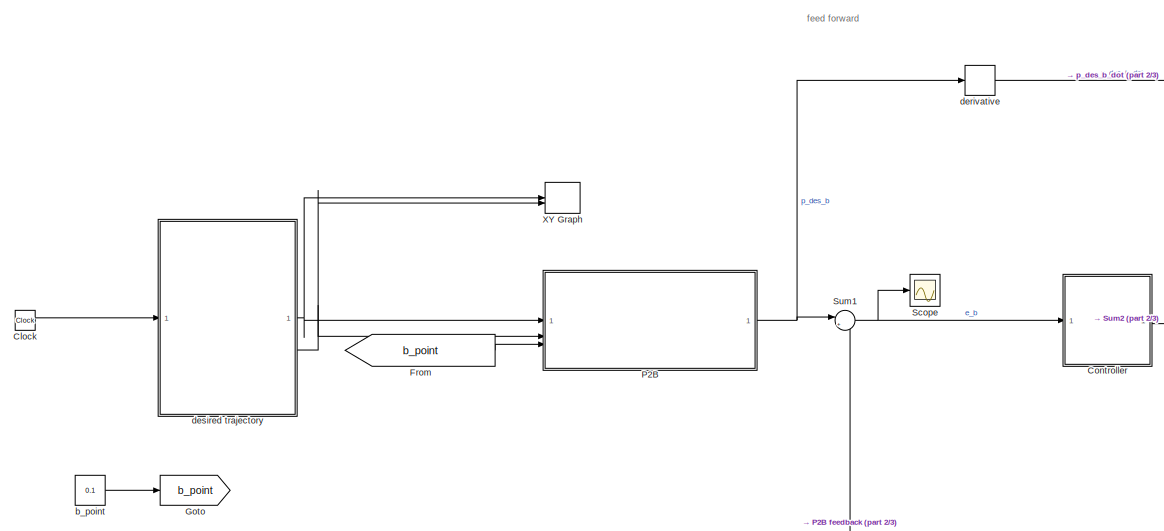
[diagram: root canvas - part 1/3, middle left region]
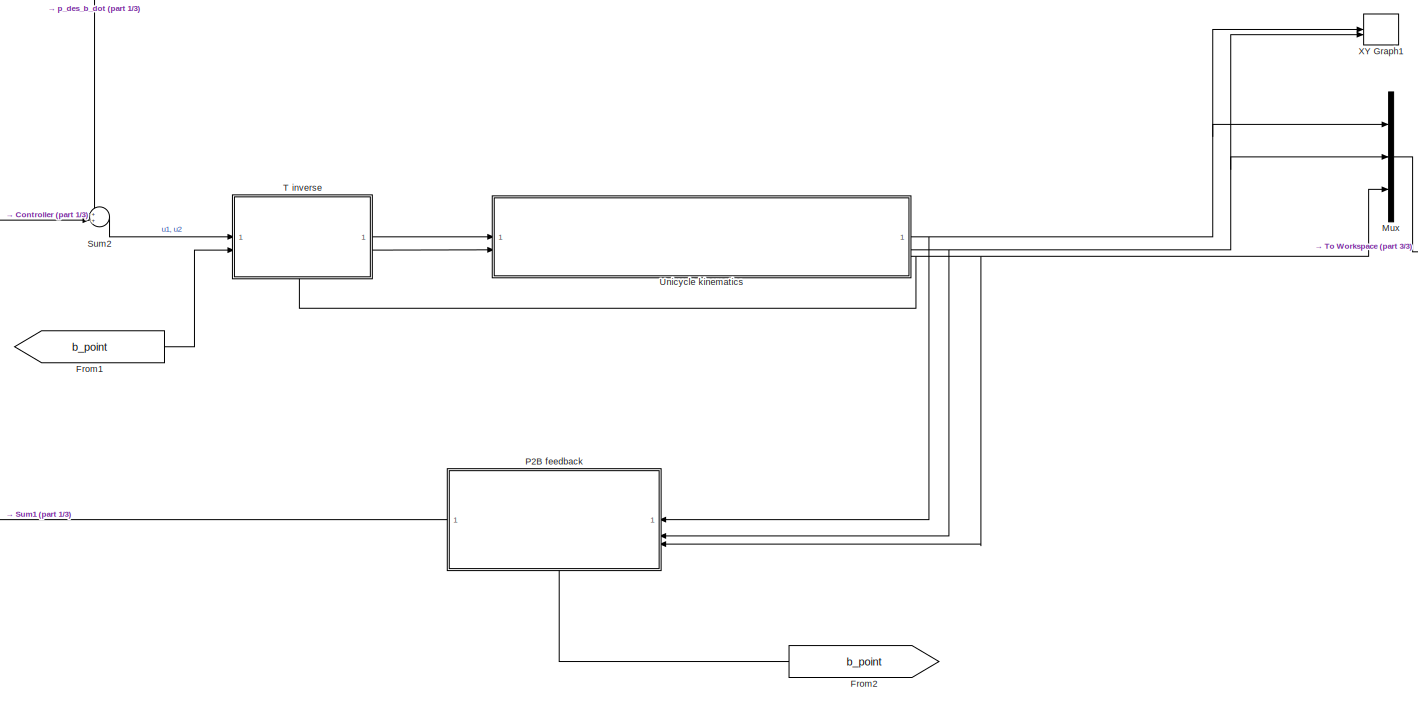
[diagram: root canvas - part 2/3, center side, full height]
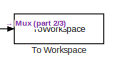
[diagram: root canvas - part 3/3, middle right region]
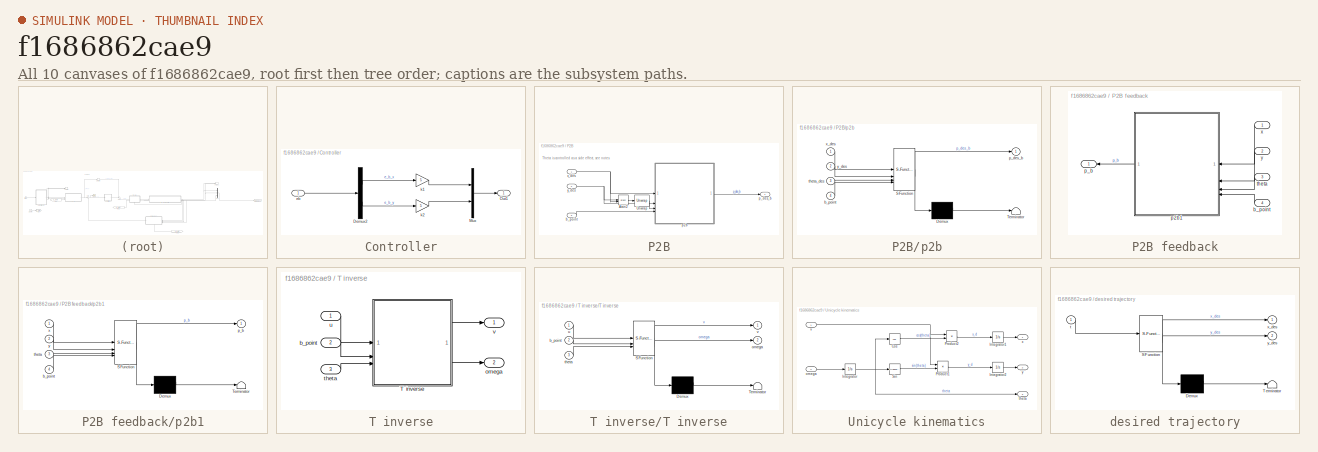
[diagram: thumbnail index - all 10 canvases of the model, root first then tree order]
MODEL slx_f1686862cae9
KIND model
CONFIG AbsTol = auto
CONFIG EnableMultiTasking = off
CONFIG FixedStep = 1e-3
CONFIG MaxStep = 0.01
CONFIG MinStep = auto
CONFIG RelTol = 1e-3
CONFIG SampleTimeConstraint = Unconstrained
CONFIG SolverName = ode5
CONFIG StartTime = 0.0
CONFIG StopTime = 40
BLOCK [Clock] Clock
BLOCK [SubSystem] Controller
BLOCK [Demux] Controller/Demux2
  Outputs = 2
BLOCK [Mux] Controller/Mux
  DisplayOption = bar
  Inputs = 2
BLOCK [Outport] Controller/Out1
BLOCK [Inport] Controller/eb
BLOCK [Gain] Controller/k1
  Gain = 5
BLOCK [Gain] Controller/k2
  Gain = 5
BLOCK [From] From
  GotoTag = b_point
BLOCK [From] From1
  GotoTag = b_point
BLOCK [From] From2
  GotoTag = b_point
  NameLocation = top
BLOCK [Goto] Goto
  GotoTag = b_point
BLOCK [Mux] Mux
  DisplayOption = bar
  Inputs = 3
BLOCK [SubSystem] P2B
BLOCK [SubSystem] P2B feedback
  NameLocation = top
  PortSchema = {"entries":[{"content":{"sides":[{"content":{"connectorIds":["In1","In2","In3"]},"type":"ConnectorPlacement.EquallySpacedRectSide","uuid":"f90c83b3-4884-4b15-8db2-3ad54e7fbcd2"},{"content":{"connectorIds":["Out1"],"side":"RIGHT"},"type":"ConnectorPlacement.EquallySpacedRectSide","uuid":"0e9bf0d6-0706-43e1-b116-579d07e0d7a9"},{"content":{"side":"TOP"},"type":"ConnectorPlacement.EquallySpacedRectSid...<+383ch>
BLOCK [Inport] P2B feedback/b_point
  NameLocation = top
  Port = 4
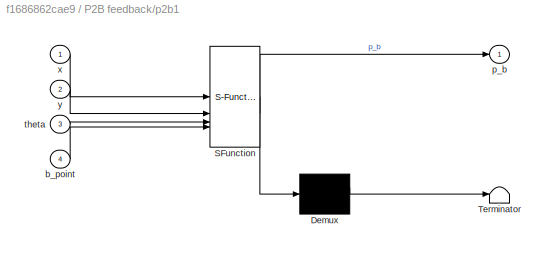
BLOCK [SubSystem] P2B feedback/p2b1
  ErrorFcn = Stateflow.Translate.translate
  NameLocation = top
  PermitHierarchicalResolution = ExplicitOnly
  SFBlockType = MATLAB Function
  TreatAsAtomicUnit = on
BLOCK [Demux] P2B feedback/p2b1/ Demux 
  Outputs = 1
BLOCK [S-Function] P2B feedback/p2b1/ SFunction 
  EnableBusSupport = off
  FunctionName = sf_sfun
  PortCounts = [4 2]
  SFcnIsStateOwnerBlock = off
  SFunctionDeploymentMode = off
  Tag = Stateflow S-Function 1
BLOCK [Terminator] P2B feedback/p2b1/ Terminator 
BLOCK [Inport] P2B feedback/p2b1/b_point
  Port = 4
BLOCK [Outport] P2B feedback/p2b1/p_b
BLOCK [Inport] P2B feedback/p2b1/theta
  Port = 3
BLOCK [Inport] P2B feedback/p2b1/x
BLOCK [Inport] P2B feedback/p2b1/y
  Port = 2
BLOCK [Outport] P2B feedback/p_b
  NameLocation = top
BLOCK [Inport] P2B feedback/theta
  NameLocation = top
  Port = 3
BLOCK [Inport] P2B feedback/x
  NameLocation = top
BLOCK [Inport] P2B feedback/y
  NameLocation = top
  Port = 2
BLOCK [Trigonometry] P2B/Atan2
  Operator = atan2
BLOCK [Reference] P2B/Unwrap  REF=dspsigops/Unwrap
  SourceBlock = dspsigops/Unwrap
  SourceType = Unwrap
  UserDataPersistent = on
BLOCK [Inport] P2B/b_point
  Port = 3
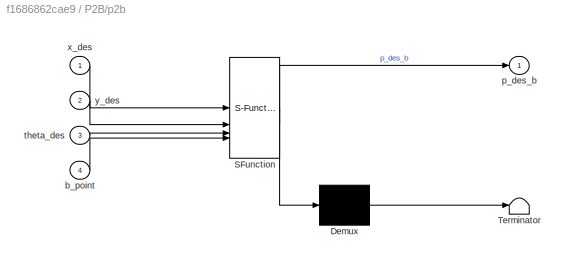
BLOCK [SubSystem] P2B/p2b
  ErrorFcn = Stateflow.Translate.translate
  PermitHierarchicalResolution = ExplicitOnly
  SFBlockType = MATLAB Function
  TreatAsAtomicUnit = on
BLOCK [Demux] P2B/p2b/ Demux 
  Outputs = 1
BLOCK [S-Function] P2B/p2b/ SFunction 
  EnableBusSupport = off
  FunctionName = sf_sfun
  PortCounts = [4 2]
  SFcnIsStateOwnerBlock = off
  SFunctionDeploymentMode = off
  Tag = Stateflow S-Function 3
BLOCK [Terminator] P2B/p2b/ Terminator 
BLOCK [Inport] P2B/p2b/b_point
  Port = 4
BLOCK [Outport] P2B/p2b/p_des_b
BLOCK [Inport] P2B/p2b/theta_des
  Port = 3
BLOCK [Inport] P2B/p2b/x_des
BLOCK [Inport] P2B/p2b/y_des
  Port = 2
BLOCK [Outport] P2B/p_des_b
BLOCK [Inport] P2B/x_des
BLOCK [Inport] P2B/y_des
  Port = 2
BLOCK [Scope] Scope
  ActiveDisplayYMaximum = 2.1146922300504998E+12
  ActiveDisplayYMinimum = -2.3496580332786578E+11
  Floating = off
  GraphicalSettings = {"Style":{"BackgroundColor":[0.12941176470588237,0.12941176470588237,0.12941176470588237],"AxesColor":[0.07058823529411765,0.07058823529411765,0.07058823529411765],"LabelsColor":[0.8509803921568627,0.8509803921568627,0.8509803921568627],"PreserveColors":false,"Visible":[true,true],"LineStyle":["-","-"],"LineWidth":[1.5,1.5],"BarWidth":[0.9,0.9],"LineColor":["auto","auto"],"LineFaceAlpha":[1,1],"Li...<+2124ch>
  MultipleDisplayCache = [{"MaxYLimMag":2.1146922300504998E+12,"MaxYLimReal":2.1146922300504998E+12,"MinYLimMag":0,"MinYLimReal":-2.3496580332786578E+11,"PlotAsMagnitudePhase":false,"ShowGrid":true,"ShowLegend":false,"Title":"%<SignalLabel>","YLabel":""}]
  NumInputPorts = 1
  ScopeFrameLocation = window
  WasSavedAsWebScope = on
  WindowPosition = [1.000000,41.000000,2560.000000,1377.000000,]
BLOCK [Sum] Sum1
  Inputs = |+-
BLOCK [Sum] Sum2
  Inputs = ++|
BLOCK [SubSystem] T inverse
  PortSchema = {"entries":[{"content":{"sides":[{"content":{"connectorIds":["In1","In2"]},"type":"ConnectorPlacement.EquallySpacedRectSide","uuid":"6a572e67-edde-4e1b-8365-e17ad9f48dde"},{"content":{"connectorIds":["Out1","Out2"],"side":"RIGHT"},"type":"ConnectorPlacement.EquallySpacedRectSide","uuid":"eef3ef4a-e0db-4110-95fe-7b093a8263df"},{"content":{"side":"TOP"},"type":"ConnectorPlacement.EquallySpacedRectSi...<+384ch>
BLOCK [SubSystem] T inverse/T inverse
  ErrorFcn = Stateflow.Translate.translate
  PermitHierarchicalResolution = ExplicitOnly
  SFBlockType = MATLAB Function
  TreatAsAtomicUnit = on
BLOCK [Demux] T inverse/T inverse/ Demux 
  Outputs = 1
BLOCK [S-Function] T inverse/T inverse/ SFunction 
  EnableBusSupport = off
  FunctionName = sf_sfun
  PortCounts = [3 3]
  SFcnIsStateOwnerBlock = off
  SFunctionDeploymentMode = off
  Tag = Stateflow S-Function 7
BLOCK [Terminator] T inverse/T inverse/ Terminator 
BLOCK [Inport] T inverse/T inverse/b_point
  Port = 2
BLOCK [Outport] T inverse/T inverse/omega
  Port = 2
BLOCK [Inport] T inverse/T inverse/theta
  Port = 3
BLOCK [Inport] T inverse/T inverse/u
BLOCK [Outport] T inverse/T inverse/v
BLOCK [Inport] T inverse/b_point
  Port = 2
BLOCK [Outport] T inverse/omega
  Port = 2
BLOCK [Inport] T inverse/theta
  Port = 3
BLOCK [Inport] T inverse/u
BLOCK [Outport] T inverse/v
BLOCK [ToWorkspace] To Workspace
  FixptAsFi = on
  MaxDataPoints = inf
  SampleTime = -1
  SaveFormat = Timeseries
  VariableName = sim_pose
BLOCK [SubSystem] Unicycle kinematics
BLOCK [Trigonometry] Unicycle kinematics/Cos
  Operator = cos
BLOCK [Integrator] Unicycle kinematics/Integrator
BLOCK [Integrator] Unicycle kinematics/Integrator1
BLOCK [Integrator] Unicycle kinematics/Integrator2
BLOCK [Product] Unicycle kinematics/Product1
BLOCK [Product] Unicycle kinematics/Product2
BLOCK [Trigonometry] Unicycle kinematics/Sin
BLOCK [Inport] Unicycle kinematics/omega
  Port = 2
BLOCK [Outport] Unicycle kinematics/theta
  Port = 3
BLOCK [Inport] Unicycle kinematics/v
BLOCK [Outport] Unicycle kinematics/x
BLOCK [Outport] Unicycle kinematics/y
  Port = 2
BLOCK [Record] XY Graph
  CompatibilityTag = XY
  FileSettingsInternal = {"entries":[{"content":{"excelSettings":{"content":{},"type":"Streamout.ExcelSettings"},"parquetSettings":{"content":{},"type":"Streamout.ParquetSettings"}},"type":"Streamout.FileSettingStorage","uuid":""}],"packageUris":["http:\/\/schema.mathworks.com\/mf0\/streamout_blocks\/R2020a"],"version":"1.0"}
  FrameSettings = [0, 0]
  Layout = [1 1]
  NumPorts = 2.0
  SignalsInternal = {"entries":[{"content":{"signals":[{"content":{"blockPath":[],"dimensions":[1],"domain":"","lineColor":"#a2142f","plots":[ 1 ],"port":1,"sid":[""],"signalID":1,"signalName":"desired trajectory:1"},"type":"RecordBlkView.Signal","uuid":""},{"content":{"blockPath":[],"dimensions":[1],"domain":"","lineColor":"#139fff","plots":[ 1 ],"port":2,"sid":[""],"signalID":2,"signalName":"desired trajectory:2"},...<+186ch>
  VisualizationBindings = {"xyplotplugin":{"info":[{"series":[{"bindingParametersList":[{"parameter":"X-Axis","signalID":1,"signalName":"desired trajectory:1"},{"parameter":"Y-Axis","signalID":2,"signalName":"desired trajectory:2"}],"seriesID":0}],"subplotID":1}]}}
BLOCK [Record] XY Graph1
  CompatibilityTag = XY
  FileSettingsInternal = {"entries":[{"content":{"excelSettings":{"content":{},"type":"Streamout.ExcelSettings"},"parquetSettings":{"content":{},"type":"Streamout.ParquetSettings"}},"type":"Streamout.FileSettingStorage","uuid":""}],"packageUris":["http:\/\/schema.mathworks.com\/mf0\/streamout_blocks\/R2020a"],"version":"1.0"}
  FrameSettings = [0, 0]
  Layout = [1 1]
  NumPorts = 2.0
  SignalsInternal = {"entries":[{"content":{"signals":[{"content":{"blockPath":[],"dimensions":[1],"domain":"","lineColor":"#a2142f","plots":[ 1 ],"port":1,"sid":[""],"signalID":1,"signalName":"Unicycle kinematics:1"},"type":"RecordBlkView.Signal","uuid":""},{"content":{"blockPath":[],"dimensions":[1],"domain":"","lineColor":"#139fff","plots":[ 1 ],"port":2,"sid":[""],"signalID":2,"signalName":"Unicycle kinematics:2"...<+188ch>
  VisualizationBindings = {"xyplotplugin":{"info":[{"series":[{"bindingParametersList":[{"parameter":"X-Axis","signalID":1,"signalName":"Unicycle kinematics:1"},{"parameter":"Y-Axis","signalID":2,"signalName":"Unicycle kinematics:2"}],"seriesID":0}],"subplotID":1}]}}
BLOCK [Constant] b_point
  Value = 0.1
BLOCK [Derivative] derivative
BLOCK [SubSystem] desired trajectory
  ErrorFcn = Stateflow.Translate.translate
  PermitHierarchicalResolution = ExplicitOnly
  SFBlockType = MATLAB Function
  TreatAsAtomicUnit = on
BLOCK [Demux] desired trajectory/ Demux 
  Outputs = 1
BLOCK [S-Function] desired trajectory/ SFunction 
  EnableBusSupport = off
  FunctionName = sf_sfun
  PortCounts = [1 3]
  SFcnIsStateOwnerBlock = off
  SFunctionDeploymentMode = off
  Tag = Stateflow S-Function 4
BLOCK [Terminator] desired trajectory/ Terminator 
BLOCK [Inport] desired trajectory/t
BLOCK [Outport] desired trajectory/x_des
BLOCK [Outport] desired trajectory/y_des
  Port = 2
ANNOTATION (root): feed forward
ANNOTATION P2B: Theta is controlled as a side effect, see notes
LINE Clock:1 -> desired trajectory:1
LINE Controller/Demux2:1 -> Controller/k1:1
LINE Controller/Demux2:2 -> Controller/k2:1
LINE Controller/Mux:1 -> Controller/Out1:1
LINE Controller/eb:1 -> Controller/Demux2:1
LINE Controller/k1:1 -> Controller/Mux:1
LINE Controller/k2:1 -> Controller/Mux:2
LINE Controller:1 -> Sum2:2
LINE From1:1 -> T inverse:2
LINE From2:1 -> P2B feedback:4
LINE From:1 -> P2B:3
LINE Mux:1 -> To Workspace:1
LINE P2B feedback/b_point:1 -> P2B feedback/p2b1:4
LINE P2B feedback/p2b1:1 -> P2B feedback/p_b:1
LINE P2B feedback/theta:1 -> P2B feedback/p2b1:3
LINE P2B feedback/x:1 -> P2B feedback/p2b1:1
LINE P2B feedback/y:1 -> P2B feedback/p2b1:2
LINE P2B feedback:1 -> Sum1:2
LINE P2B/Atan2:1 -> P2B/Unwrap:1
LINE P2B/Unwrap:1 -> P2B/p2b:3
LINE P2B/b_point:1 -> P2B/p2b:4
LINE P2B/p2b:1 -> P2B/p_des_b:1
NET P2B/x_des:1 -> P2B/Atan2:2, P2B/p2b:1
NET P2B/y_des:1 -> P2B/Atan2:1, P2B/p2b:2
NET P2B:1 -> Sum1:1, derivative:1
NET Sum1:1 -> Controller:1, Scope:1
LINE Sum2:1 -> T inverse:1
LINE T inverse/T inverse:1 -> T inverse/v:1
LINE T inverse/T inverse:2 -> T inverse/omega:1
LINE T inverse/b_point:1 -> T inverse/T inverse:2
LINE T inverse/theta:1 -> T inverse/T inverse:3
LINE T inverse/u:1 -> T inverse/T inverse:1
LINE T inverse:1 -> Unicycle kinematics:1
LINE T inverse:2 -> Unicycle kinematics:2
LINE Unicycle kinematics/Cos:1 -> Unicycle kinematics/Product2:2
LINE Unicycle kinematics/Integrator1:1 -> Unicycle kinematics/x:1
LINE Unicycle kinematics/Integrator2:1 -> Unicycle kinematics/y:1
NET Unicycle kinematics/Integrator:1 -> Unicycle kinematics/Cos:1, Unicycle kinematics/Sin:1, Unicycle kinematics/theta:1
LINE Unicycle kinematics/Product1:1 -> Unicycle kinematics/Integrator2:1
LINE Unicycle kinematics/Product2:1 -> Unicycle kinematics/Integrator1:1
LINE Unicycle kinematics/Sin:1 -> Unicycle kinematics/Product1:2
LINE Unicycle kinematics/omega:1 -> Unicycle kinematics/Integrator:1
NET Unicycle kinematics/v:1 -> Unicycle kinematics/Product1:1, Unicycle kinematics/Product2:1
NET Unicycle kinematics:1 -> Mux:1, P2B feedback:1, XY Graph1:1
NET Unicycle kinematics:2 -> Mux:2, P2B feedback:2, XY Graph1:2
NET Unicycle kinematics:3 -> Mux:3, P2B feedback:3, T inverse:3
LINE b_point:1 -> Goto:1
LINE derivative:1 -> Sum2:1
NET desired trajectory:1 -> P2B:1, XY Graph:1
NET desired trajectory:2 -> P2B:2, XY Graph:2
note: NET lines group one-source signal fan-out (src -> all destinations, sorted); 1:1 wires keep LINE
CHART P2B feedback/p2b1 states=1 transitions=1
  STATE_LABEL 'eML_blk_kernel()'
  STATE_LABEL 'SCRIPT:\nfunction p_b = fcn(x, y, theta, b_point)\n\nx_b = x + b_point * cos(theta);\ny_b = y + b_point * sin(theta);\n\np_b = [x_b; y_b];\n'
CHART P2B/p2b states=1 transitions=1
  STATE_LABEL 'eML_blk_kernel()'
  STATE_LABEL 'SCRIPT:\nfunction p_des_b = fcn(x_des, y_des, theta_des,  b_point)\n\nx_b = x_des + b_point * cos(theta_des);\ny_b = y_des + b_point * sin(theta_des);\n\np_des_b = [x_b; y_b];\n'
CHART desired trajectory states=1 transitions=1
  STATE_LABEL 'eML_blk_kernel()'
  STATE_LABEL 'SCRIPT:\nfunction [x_des, y_des] = fcn(t)\n\n% % configurable:\n% radius = 5;\n% omega_des = 0.2;\n% \n% % desired trajectory\n% x_des = -radius*cos(omega_des*t);\n% y_des = -radius*sin(omega_des*t);\n\n\n% % configurable:\n% radius = 10;\n% omega_des = 0.5;\n% \n% % desired trajectory\n% x_des = radius*cos(omega_des*t);\n% y_des = radius*sin(omega_des*t);\n% \n\n\nif t <= 10\n    x_des = 10+t;\n    y_des = 10;\nelseif  t...<+183ch>'
CHART T inverse/T inverse states=1 transitions=1
  STATE_LABEL 'eML_blk_kernel()'
  STATE_LABEL 'SCRIPT:\nfunction [v, omega] = fcn(u, b_point, theta)\n\n% define matrix T inverse\nT_inv = (1/b_point)*[b_point*cos(theta), b_point*sin(theta);\n    -sin(theta), cos(theta)];\n\n% do calculation\nres = T_inv * u;\n\n% assign output\nv = res(1, 1);\nomega = res(2, 1);\n'
CHART  states=0 transitions=0
CHART  states=0 transitions=0
CHART  states=0 transitions=0
CHART  states=0 transitions=0
